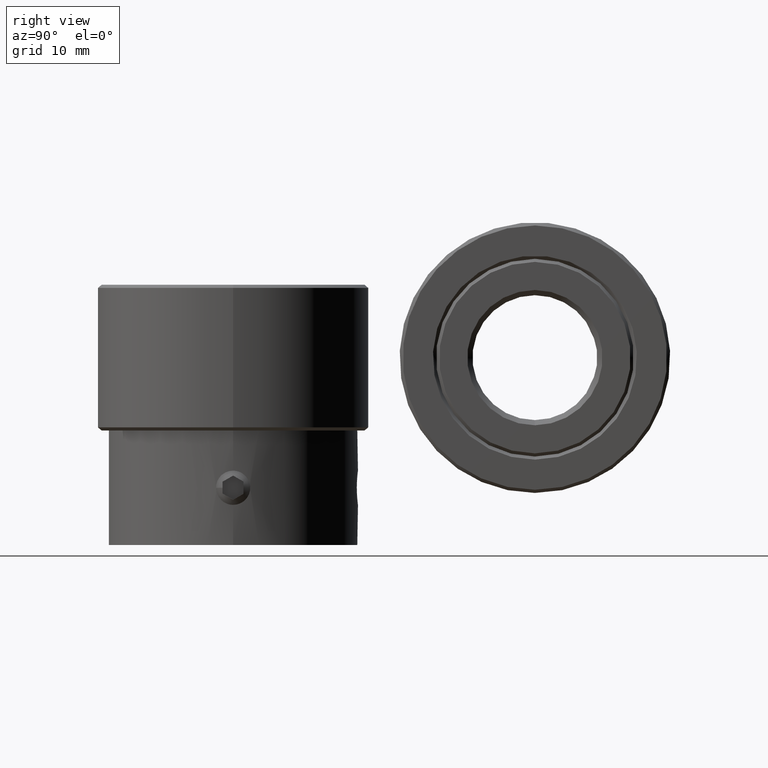
[diagram: clean part render]
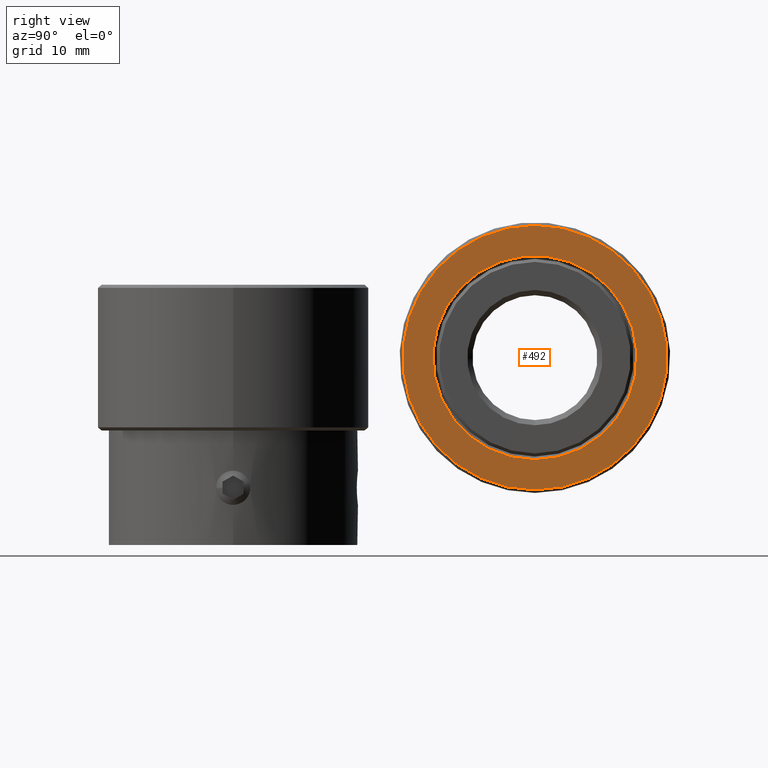
[diagram: same view with one face highlighted and labeled with its STEP entity id]
A machine part, right view. The second image highlights one B-rep face of the part: STEP entity #492.
In plain terms, the highlighted planar face has unit normal (1, 0, 0).
Its self-contained STEP definition (entity closure, byte-faithful):
#492 = ADVANCED_FACE( '', ( #663, #664 ), #665, .T. );
#663 = FACE_BOUND( '', #889, .T. );
#664 = FACE_OUTER_BOUND( '', #890, .T. );
#665 = PLANE( '', #891 );
#889 = EDGE_LOOP( '', ( #1189 ) );
#890 = EDGE_LOOP( '', ( #1190 ) );
#891 = AXIS2_PLACEMENT_3D( '', #1191, #1192, #1193 );
#1189 = ORIENTED_EDGE( '', *, *, #1539, .T. );
#1190 = ORIENTED_EDGE( '', *, *, #1538, .T. );
#1191 = CARTESIAN_POINT( '', ( 7.00000000000000, 29.0000000000000, -7.00000000000000 ) );
#1192 = DIRECTION( '', ( 1.00000000000000, 0.000000000000000, 6.12323399573677E-017 ) );
#1193 = DIRECTION( '', ( 6.12323399573677E-017, 0.000000000000000, -1.00000000000000 ) );
#1538 = EDGE_CURVE( '', #1708, #1708, #1709, .T. );
#1539 = EDGE_CURVE( '', #1710, #1710, #1711, .F. );
#1708 = VERTEX_POINT( '', #2360 );
#1709 = CIRCLE( '', #2361, 12.7000000000000 );
#1710 = VERTEX_POINT( '', #2362 );
#1711 = CIRCLE( '', #2363, 9.80000000000000 );
#2360 = CARTESIAN_POINT( '', ( 7.00000000000000, 29.0000000000000, -19.7000000000000 ) );
#2361 = AXIS2_PLACEMENT_3D( '', #2772, #2773, #2774 );
#2362 = CARTESIAN_POINT( '', ( 7.00000000000000, 29.0000000000000, -16.8000000000000 ) );
#2363 = AXIS2_PLACEMENT_3D( '', #2775, #2776, #2777 );
#2772 = CARTESIAN_POINT( '', ( 7.00000000000000, 29.0000000000000, -7.00000000000000 ) );
#2773 = DIRECTION( '', ( 1.00000000000000, 0.000000000000000, 6.12323399573677E-017 ) );
#2774 = DIRECTION( '', ( 6.12323399573677E-017, 0.000000000000000, -1.00000000000000 ) );
#2775 = CARTESIAN_POINT( '', ( 7.00000000000000, 29.0000000000000, -7.00000000000000 ) );
#2776 = DIRECTION( '', ( 1.00000000000000, 0.000000000000000, 6.12323399573677E-017 ) );
#2777 = DIRECTION( '', ( 6.12323399573677E-017, 0.000000000000000, -1.00000000000000 ) );